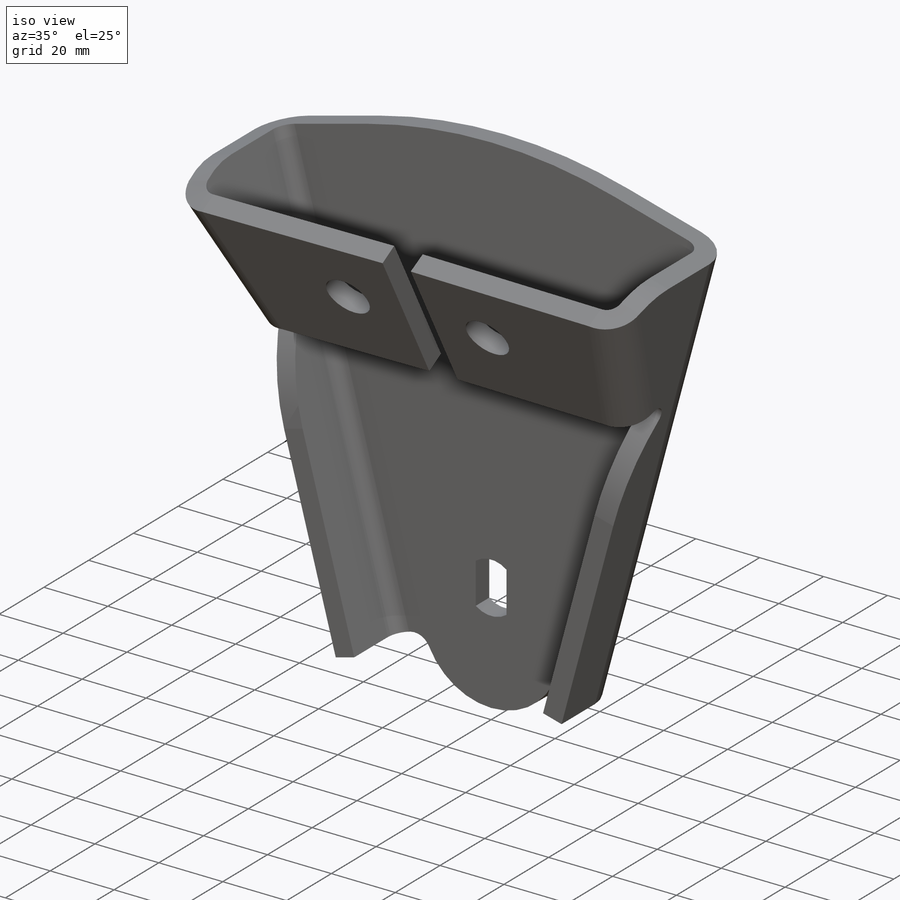
[diagram: iso view]
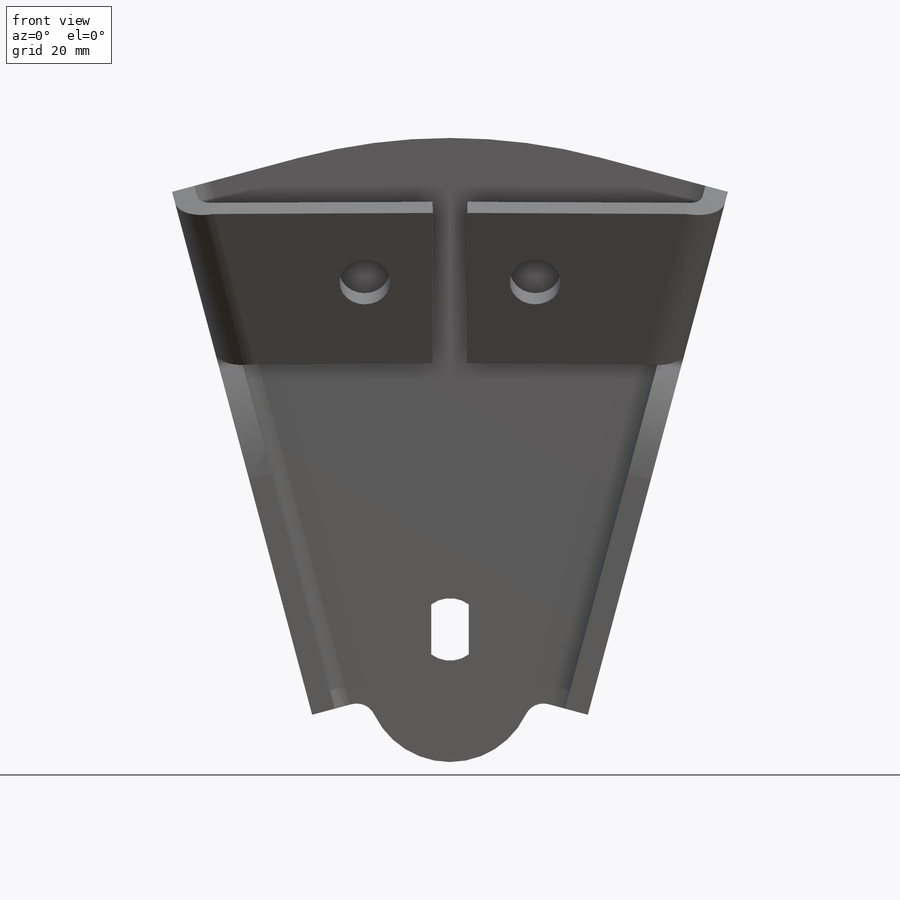
[diagram: front view]
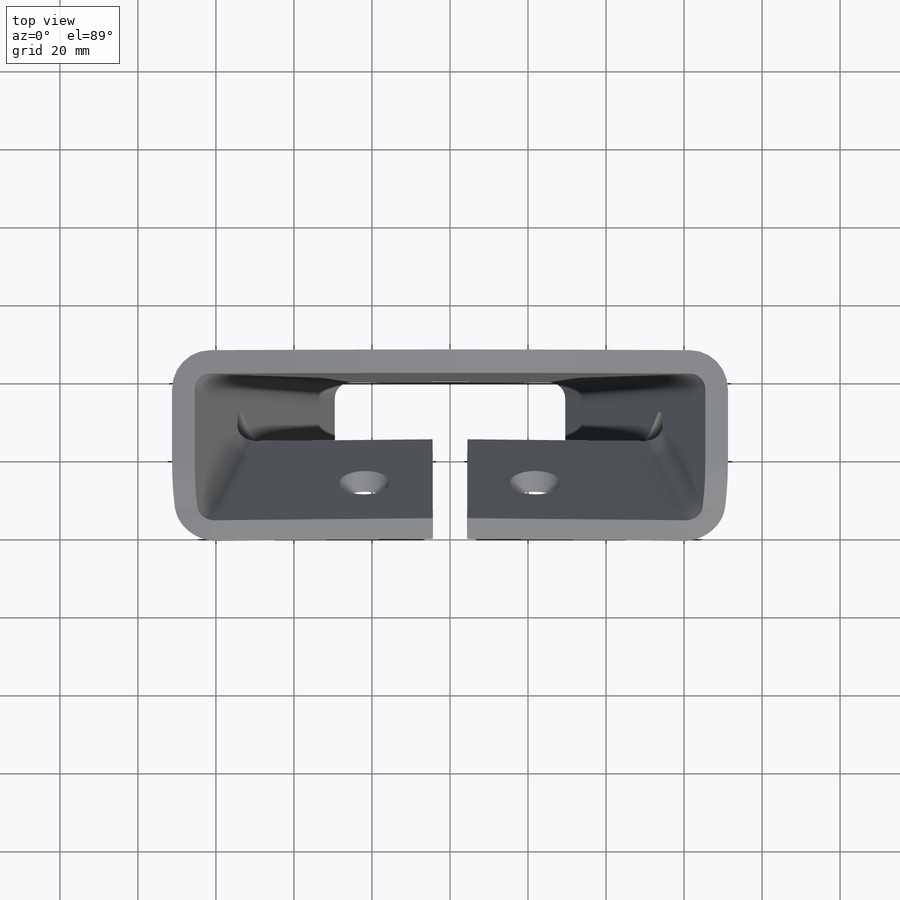
[diagram: top view]
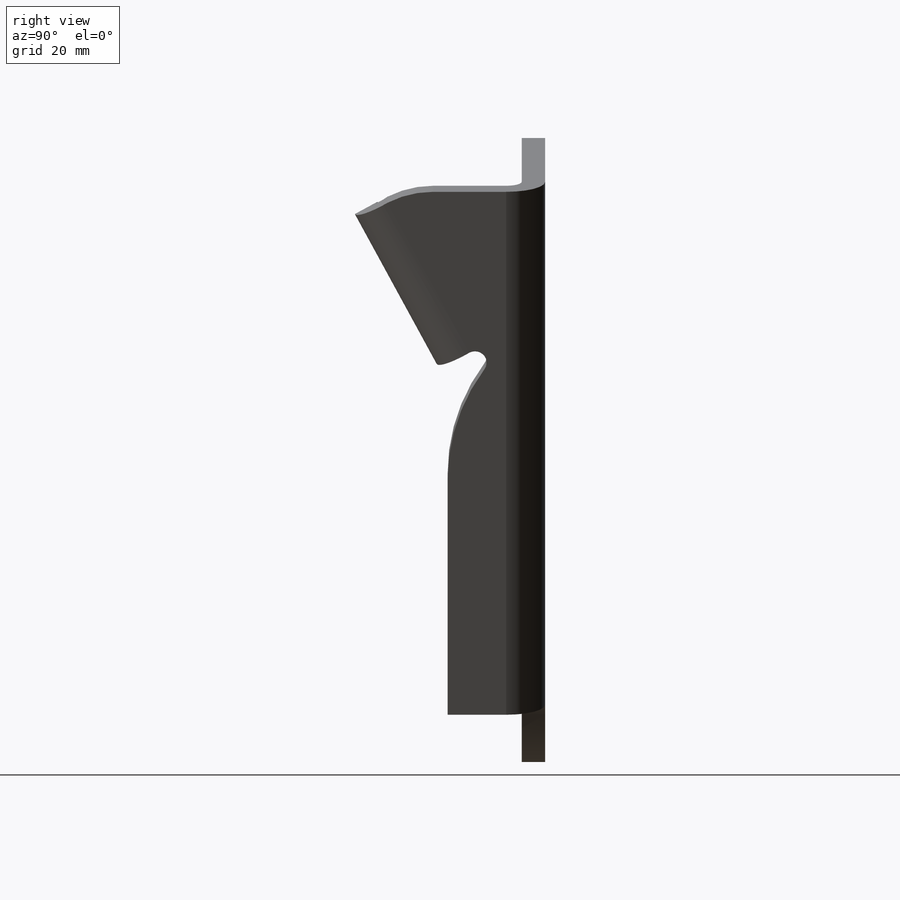
[diagram: right view]
SOLIDWORKS PART (.sldprt)
format: sldprt  version: not decoded by parser v0  size: 386,048 bytes
history: native  units: mm
features: sketch x15, sheet_metal_op x8, mirror x4, plane x3, material x1, fillet x1 + 7 further entries (+9 scaffold rows collapsed; 4 parser-record rows omitted)
feature tree (52):
  scaffold x9  (default folders/planes/origin — collapsed)
  material  "Material <nicht festgelegt>"
  plane  "Ebene vorne"
  plane  "Ebene oben"
  plane  "Ebene rechts"
  sketch  "3D-Skizze1"  dims[D1=0.0mm]
  sketch  "Skizze1"  dims[c1.D1=16.0mm c1.D4=34.0mm c1.D6=150.0mm c1.D2=~114.574048mm c2.D2=~39.004897deg c3.D2=~523.598776mm c3.D3=10.0mm c3.D4=34.0mm c3.D5=126.0mm c3.D1=4.0mm c4.D2=0.5 c4.D3=0.0deg c4.D6=~28.64789deg]
  sheet_metal_op  "Basis-Blech1"
  sketch  "Skizze14"  dims[D1=~471.238898mm]
  sketch  "Skizze8"  dims[c1.D2=50.0mm c1.D3=3.0mm c1.D5=25.0mm c1.D1=15.0mm c1.D4=25.0mm c1.D6=~485.404465mm c1.D7=45.0mm c2.D1=4.0mm c2.D4=~1570.796327mm c2.D5=1.0 c2.D8=~0.171887deg c2.D9=~0.171887deg c3.D1=4.0mm c3.D2=~28.64789deg c3.D3=0.0deg c3.D6=5.0mm c3.D7=47.8mm c3.Kante-Lasche2=0.0]
  sheet_metal_op  "Kantenbiegung3"
  sketch  "Skizze13"  dims[c1.D3=13.0mm c1.D1=~231.261049mm c1.D2=5.0mm c2.D1=4.0mm c2.D2=~28.64789deg c2.D3=0.0deg c2.D6=10.0mm c2.D7=33.48mm]
  mirror  "Spiegeln5"
  sheet_metal_op  "Biegung spiegeln4"
  sheet_metal_op  "Biegung spiegeln5"
  fillet  "Verrundung1"  Radius=5mm
  sketch  "Biegung-Linien1"
  sketch  "Rahmen1"
  sheet_metal_op  "Blech(3)"
  "Abwicklung(3)"
  sketch  "Biegung-Linien2"
  sketch  "Rahmen2"
  parser-record x4  (decoder bookkeeping rows leaked as tree rows — omitted from the tree; the rows remain in map.json)
  mirror  "Blech(4)"
  sheet_metal_op  "Abwicklung(3)"
  sketch  "Biegung-Linien2"
  sketch  "Rahmen2"
  mirror  "Blech(5)"
  sheet_metal_op  "Abwicklung(3)"
  sketch  "Biegung-Linien2"
  sketch  "Rahmen2"
  "Abwickeln-<Kantenbiegung1>1"
  "Abwickeln-<Kantenbiegung3>1"
  mirror  "Blech(6)"
  sheet_metal_op  "Abwicklung(3)"
  sketch  "Biegung-Linien2"
  sketch  "Rahmen2"
  "Abwickeln-<Kantenbiegung1>1"
  "Abwickeln-<Kantenbiegung3>1"
  "Abwickeln-<Biegung spiegeln4>1"
  "Abwickeln-<Biegung spiegeln5>1"
decode coverage: 6 of 28 modeling features carry decoded parameters; 7 rows unclassified (native names shown)
note: ~ marks probable driven/reference dimensions
note: suppression state not decoded; provenance and decode notes live in map.json
